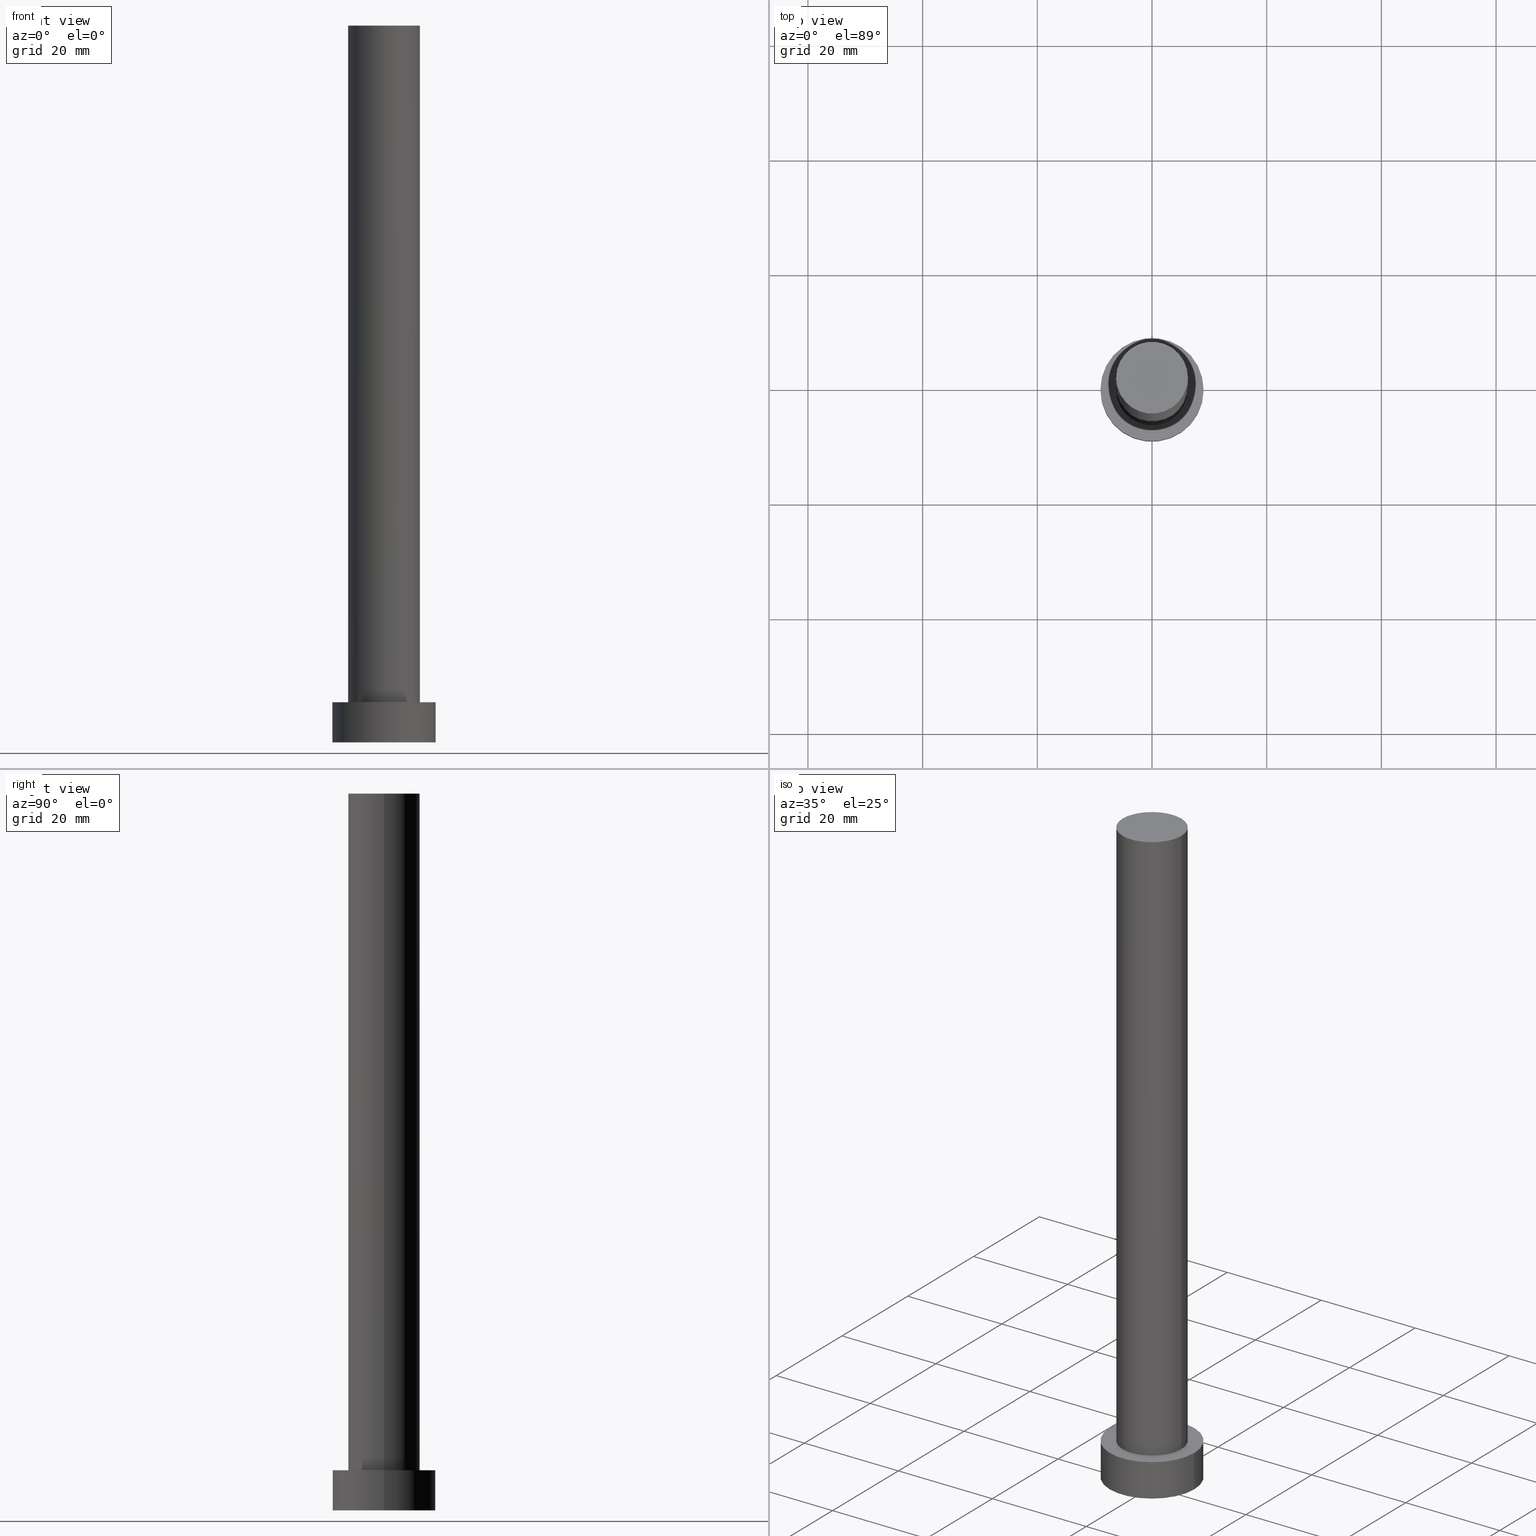
[diagram: canonical four-view strip — front | top / right | iso, engineering-drawing reading convention]
A machine part, canonical four-view strip (front | top / right | iso — engineering-drawing reading convention). The complete STEP part file that produces these views, byte-faithful:
ISO-10303-21;
HEADER;
FILE_DESCRIPTION (( 'STEP AP203' ),
    '1' );
FILE_NAME ('7d40.STEP',
    '2026-02-06T12:36:36',
    ( '' ),
    ( '' ),
    'SwSTEP 2.0',
    'SolidWorks 2019',
    '' );
FILE_SCHEMA (( 'CONFIG_CONTROL_DESIGN' ));
ENDSEC;

DATA;
#1 = CARTESIAN_POINT ( 'NONE',  ( 0.000000000000000000, 0.000000000000000000, 0.000000000000000000 ) ) ;
#2 = ORIENTED_EDGE ( 'NONE', *, *, #75, .F. ) ;
#3 = PRODUCT_DEFINITION_SHAPE ( 'NONE', 'NONE',  #218 ) ;
#4 = DATE_AND_TIME ( #135, #27 ) ;
#5 = FACE_OUTER_BOUND ( 'NONE', #7, .T. ) ;
#6 = PERSON_AND_ORGANIZATION ( #251, #200 ) ;
#7 = EDGE_LOOP ( 'NONE', ( #255, #171, #236, #56 ) ) ;
#8 = PERSON_AND_ORGANIZATION ( #251, #200 ) ;
#9 = CARTESIAN_POINT ( 'NONE',  ( 0.000000000000000000, 0.000000000000000000, 125.0000000000000000 ) ) ;
#10 = APPROVAL_DATE_TIME ( #4, #210 ) ;
#11 = PERSON_AND_ORGANIZATION ( #251, #200 ) ;
#12 = CIRCLE ( 'NONE', #173, 9.000000000000000000 ) ;
#13 = DATE_TIME_ROLE ( 'classification_date' ) ;
#14 = ADVANCED_FACE ( 'NONE', ( #41 ), #20, .T. ) ;
#15 = DIRECTION ( 'NONE',  ( -1.000000000000000000, 0.000000000000000000, 0.000000000000000000 ) ) ;
#16 = CARTESIAN_POINT ( 'NONE',  ( 0.000000000000000000, 0.000000000000000000, 0.000000000000000000 ) ) ;
#17 = CARTESIAN_POINT ( 'NONE',  ( -6.250000000000000000, 0.000000000000000000, 125.0000000000000000 ) ) ;
#18 = UNCERTAINTY_MEASURE_WITH_UNIT (LENGTH_MEASURE( 1.000000000000000082E-05 ), #129, 'distance_accuracy_value', 'NONE');
#19 = APPLICATION_PROTOCOL_DEFINITION ( 'international standard', 'config_control_design', 1994, #238 ) ;
#20 = CYLINDRICAL_SURFACE ( 'NONE', #88, 6.250000000000000000 ) ;
#21 = EDGE_CURVE ( 'NONE', #212, #53, #73, .T. ) ;
#22 = SECURITY_CLASSIFICATION_LEVEL ( 'unclassified' ) ;
#23 = PLANE ( 'NONE',  #104 ) ;
#24 = COORDINATED_UNIVERSAL_TIME_OFFSET ( 1, 0, .AHEAD. ) ;
#25 = CARTESIAN_POINT ( 'NONE',  ( 0.000000000000000000, 0.000000000000000000, 125.0000000000000000 ) ) ;
#26 = EDGE_CURVE ( 'NONE', #91, #145, #249, .T. ) ;
#27 = LOCAL_TIME ( 13, 36, 36.00000000000000000, #193 ) ;
#28 = DIRECTION ( 'NONE',  ( 0.000000000000000000, 0.000000000000000000, 1.000000000000000000 ) ) ;
#29 = CARTESIAN_POINT ( 'NONE',  ( -9.000000000000000000, 0.000000000000000000, 7.000000000000000000 ) ) ;
#30 = ADVANCED_FACE ( 'NONE', ( #5 ), #147, .T. ) ;
#31 = PLANE ( 'NONE',  #137 ) ;
#32 = VERTEX_POINT ( 'NONE', #149 ) ;
#33 = CARTESIAN_POINT ( 'NONE',  ( -6.250000000000000000, 0.000000000000000000, 125.0000000000000000 ) ) ;
#34 =( NAMED_UNIT ( * ) SI_UNIT ( $, .STERADIAN. ) SOLID_ANGLE_UNIT ( ) );
#35 = CC_DESIGN_PERSON_AND_ORGANIZATION_ASSIGNMENT ( #136, #242, ( #253 ) ) ;
#36 = PRODUCT ( '7d40', '7d40', '', ( #97 ) ) ;
#37 = VERTEX_POINT ( 'NONE', #215 ) ;
#38 = CARTESIAN_POINT ( 'NONE',  ( 0.000000000000000000, 0.000000000000000000, 125.0000000000000000 ) ) ;
#39 = AXIS2_PLACEMENT_3D ( 'NONE', #65, #80, #116 ) ;
#40 = PERSON_AND_ORGANIZATION ( #251, #200 ) ;
#41 = FACE_OUTER_BOUND ( 'NONE', #152, .T. ) ;
#42 = CIRCLE ( 'NONE', #172, 6.250000000000000000 ) ;
#43 = COORDINATED_UNIVERSAL_TIME_OFFSET ( 1, 0, .AHEAD. ) ;
#44 = DIRECTION ( 'NONE',  ( -0.000000000000000000, -0.000000000000000000, -1.000000000000000000 ) ) ;
#45 = DATE_AND_TIME ( #155, #153 ) ;
#46 = VECTOR ( 'NONE', #94, 1000.000000000000000 ) ;
#47 = ADVANCED_FACE ( 'NONE', ( #194, #243 ), #239, .T. ) ;
#48 = SECURITY_CLASSIFICATION ( '', '', #22 ) ;
#49 = ADVANCED_FACE ( 'NONE', ( #195 ), #23, .T. ) ;
#50 = DIRECTION ( 'NONE',  ( 0.000000000000000000, 0.000000000000000000, 1.000000000000000000 ) ) ;
#51 = ORIENTED_EDGE ( 'NONE', *, *, #121, .F. ) ;
#52 = CYLINDRICAL_SURFACE ( 'NONE', #207, 6.250000000000000000 ) ;
#53 = VERTEX_POINT ( 'NONE', #17 ) ;
#54 = ADVANCED_FACE ( 'NONE', ( #181 ), #31, .F. ) ;
#55 = DIRECTION ( 'NONE',  ( 1.000000000000000000, 0.000000000000000000, 0.000000000000000000 ) ) ;
#56 = ORIENTED_EDGE ( 'NONE', *, *, #103, .T. ) ;
#57 = DIRECTION ( 'NONE',  ( 1.000000000000000000, 0.000000000000000000, 0.000000000000000000 ) ) ;
#58 = ORIENTED_EDGE ( 'NONE', *, *, #228, .T. ) ;
#59 = ORIENTED_EDGE ( 'NONE', *, *, #95, .F. ) ;
#60 = CC_DESIGN_DATE_AND_TIME_ASSIGNMENT ( #45, #154, ( #218 ) ) ;
#61 = CARTESIAN_POINT ( 'NONE',  ( 0.000000000000000000, 0.000000000000000000, 0.000000000000000000 ) ) ;
#62 = DATE_AND_TIME ( #196, #208 ) ;
#63 = CARTESIAN_POINT ( 'NONE',  ( 0.000000000000000000, 0.000000000000000000, 7.000000000000000000 ) ) ;
#64 = DATE_AND_TIME ( #244, #223 ) ;
#65 = CARTESIAN_POINT ( 'NONE',  ( 0.000000000000000000, 0.000000000000000000, 7.000000000000000000 ) ) ;
#66 = DIRECTION ( 'NONE',  ( 1.000000000000000000, 0.000000000000000000, 0.000000000000000000 ) ) ;
#67 = APPROVAL_STATUS ( 'not_yet_approved' ) ;
#68 = APPROVAL_STATUS ( 'not_yet_approved' ) ;
#69 = CARTESIAN_POINT ( 'NONE',  ( 9.000000000000000000, 1.102182119232617714E-15, 7.000000000000000000 ) ) ;
#70 = CYLINDRICAL_SURFACE ( 'NONE', #214, 9.000000000000000000 ) ;
#71 = DIRECTION ( 'NONE',  ( -0.000000000000000000, -0.000000000000000000, -1.000000000000000000 ) ) ;
#72 = CARTESIAN_POINT ( 'NONE',  ( 0.000000000000000000, 0.000000000000000000, 7.000000000000000000 ) ) ;
#73 = CIRCLE ( 'NONE', #175, 6.250000000000000000 ) ;
#74 = ORIENTED_EDGE ( 'NONE', *, *, #95, .T. ) ;
#75 = EDGE_CURVE ( 'NONE', #212, #37, #205, .T. ) ;
#76 = MANIFOLD_SOLID_BREP ( 'P�idat vysunut�m3', #87 ) ;
#77 = EDGE_LOOP ( 'NONE', ( #58, #170 ) ) ;
#78 = CARTESIAN_POINT ( 'NONE',  ( 9.000000000000000000, 1.102182119232617714E-15, 7.000000000000000000 ) ) ;
#79 = APPROVAL_ROLE ( '' ) ;
#80 = DIRECTION ( 'NONE',  ( -0.000000000000000000, -0.000000000000000000, -1.000000000000000000 ) ) ;
#81 = PERSON_AND_ORGANIZATION_ROLE ( 'classification_officer' ) ;
#82 = ORIENTED_EDGE ( 'NONE', *, *, #123, .F. ) ;
#83 = APPROVAL_ROLE ( '' ) ;
#84 = ORIENTED_EDGE ( 'NONE', *, *, #103, .F. ) ;
#85 = CC_DESIGN_APPROVAL ( #231, ( #253 ) ) ;
#86 = CALENDAR_DATE ( 2026, 6, 2 ) ;
#87 = CLOSED_SHELL ( 'NONE', ( #14, #138, #30, #47, #54, #189, #49 ) ) ;
#88 = AXIS2_PLACEMENT_3D ( 'NONE', #25, #44, #247 ) ;
#89 = CARTESIAN_POINT ( 'NONE',  ( -9.000000000000000000, 0.000000000000000000, 0.000000000000000000 ) ) ;
#90 = LOCAL_TIME ( 13, 36, 36.00000000000000000, #102 ) ;
#91 = VERTEX_POINT ( 'NONE', #69 ) ;
#92 = LINE ( 'NONE', #29, #46 ) ;
#93 = CC_DESIGN_PERSON_AND_ORGANIZATION_ASSIGNMENT ( #100, #130, ( #253 ) ) ;
#94 = DIRECTION ( 'NONE',  ( -0.000000000000000000, -0.000000000000000000, -1.000000000000000000 ) ) ;
#95 = EDGE_CURVE ( 'NONE', #53, #227, #224, .T. ) ;
#96 = CARTESIAN_POINT ( 'NONE',  ( -6.250000000000000000, 0.000000000000000000, 7.000000000000000000 ) ) ;
#97 = MECHANICAL_CONTEXT ( 'NONE', #203, 'mechanical' ) ;
#98 = DIRECTION ( 'NONE',  ( 1.000000000000000000, 0.000000000000000000, 0.000000000000000000 ) ) ;
#99 = EDGE_LOOP ( 'NONE', ( #84, #128 ) ) ;
#100 = PERSON_AND_ORGANIZATION ( #251, #200 ) ;
#101 = CIRCLE ( 'NONE', #134, 9.000000000000000000 ) ;
#102 = COORDINATED_UNIVERSAL_TIME_OFFSET ( 1, 0, .AHEAD. ) ;
#103 = EDGE_CURVE ( 'NONE', #110, #32, #12, .T. ) ;
#104 = AXIS2_PLACEMENT_3D ( 'NONE', #9, #142, #221 ) ;
#105 = CARTESIAN_POINT ( 'NONE',  ( 0.000000000000000000, 0.000000000000000000, 125.0000000000000000 ) ) ;
#106 = DIRECTION ( 'NONE',  ( 0.000000000000000000, 0.000000000000000000, 1.000000000000000000 ) ) ;
#107 = VECTOR ( 'NONE', #225, 1000.000000000000000 ) ;
#108 = ORIENTED_EDGE ( 'NONE', *, *, #121, .T. ) ;
#109 = DIRECTION ( 'NONE',  ( 0.000000000000000000, 0.000000000000000000, 1.000000000000000000 ) ) ;
#110 = VERTEX_POINT ( 'NONE', #89 ) ;
#111 = PERSON_AND_ORGANIZATION ( #251, #200 ) ;
#112 = DESIGN_CONTEXT ( 'detailed design', #238, 'design' ) ;
#113 = ORIENTED_EDGE ( 'NONE', *, *, #168, .T. ) ;
#114 = CARTESIAN_POINT ( 'NONE',  ( 0.000000000000000000, 0.000000000000000000, 7.000000000000000000 ) ) ;
#115 = COORDINATED_UNIVERSAL_TIME_OFFSET ( 1, 0, .AHEAD. ) ;
#116 = DIRECTION ( 'NONE',  ( -1.000000000000000000, 0.000000000000000000, 0.000000000000000000 ) ) ;
#117 = APPROVAL_DATE_TIME ( #62, #231 ) ;
#118 = CC_DESIGN_APPROVAL ( #246, ( #48 ) ) ;
#119 = DATE_AND_TIME ( #86, #90 ) ;
#120 = CARTESIAN_POINT ( 'NONE',  ( 0.000000000000000000, 0.000000000000000000, 7.000000000000000000 ) ) ;
#121 = EDGE_CURVE ( 'NONE', #227, #37, #240, .T. ) ;
#122 = AXIS2_PLACEMENT_3D ( 'NONE', #61, #235, #57 ) ;
#123 = EDGE_CURVE ( 'NONE', #145, #110, #92, .T. ) ;
#124 = CARTESIAN_POINT ( 'NONE',  ( 0.000000000000000000, 0.000000000000000000, 0.000000000000000000 ) ) ;
#125 = ORIENTED_EDGE ( 'NONE', *, *, #21, .F. ) ;
#126 = DIRECTION ( 'NONE',  ( 0.000000000000000000, 0.000000000000000000, 1.000000000000000000 ) ) ;
#127 =( NAMED_UNIT ( * ) PLANE_ANGLE_UNIT ( ) SI_UNIT ( $, .RADIAN. ) );
#128 = ORIENTED_EDGE ( 'NONE', *, *, #157, .F. ) ;
#129 =( LENGTH_UNIT ( ) NAMED_UNIT ( * ) SI_UNIT ( .MILLI., .METRE. ) );
#130 = PERSON_AND_ORGANIZATION_ROLE ( 'creator' ) ;
#131 = DIRECTION ( 'NONE',  ( 0.000000000000000000, 0.000000000000000000, 1.000000000000000000 ) ) ;
#132 = EDGE_LOOP ( 'NONE', ( #206, #197, #182, #82 ) ) ;
#133 = AXIS2_PLACEMENT_3D ( 'NONE', #114, #169, #66 ) ;
#134 = AXIS2_PLACEMENT_3D ( 'NONE', #167, #109, #55 ) ;
#135 = CALENDAR_DATE ( 2026, 6, 2 ) ;
#136 = PERSON_AND_ORGANIZATION ( #251, #200 ) ;
#137 = AXIS2_PLACEMENT_3D ( 'NONE', #16, #126, #158 ) ;
#138 = ADVANCED_FACE ( 'NONE', ( #254 ), #70, .T. ) ;
#139 = PERSON_AND_ORGANIZATION ( #251, #200 ) ;
#140 = CIRCLE ( 'NONE', #222, 9.000000000000000000 ) ;
#141 = EDGE_CURVE ( 'NONE', #53, #212, #252, .T. ) ;
#142 = DIRECTION ( 'NONE',  ( 0.000000000000000000, 0.000000000000000000, 1.000000000000000000 ) ) ;
#143 = DIRECTION ( 'NONE',  ( 1.000000000000000000, 0.000000000000000000, 0.000000000000000000 ) ) ;
#144 = CARTESIAN_POINT ( 'NONE',  ( 0.000000000000000000, 0.000000000000000000, 7.000000000000000000 ) ) ;
#145 = VERTEX_POINT ( 'NONE', #201 ) ;
#146 = DIRECTION ( 'NONE',  ( -0.000000000000000000, -0.000000000000000000, -1.000000000000000000 ) ) ;
#147 = CYLINDRICAL_SURFACE ( 'NONE', #39, 9.000000000000000000 ) ;
#148 = AXIS2_PLACEMENT_3D ( 'NONE', #120, #183, #202 ) ;
#149 = CARTESIAN_POINT ( 'NONE',  ( 9.000000000000000000, 1.102182119232617714E-15, 0.000000000000000000 ) ) ;
#150 = EDGE_LOOP ( 'NONE', ( #51, #162 ) ) ;
#151 = PERSON_AND_ORGANIZATION_ROLE ( 'creator' ) ;
#152 = EDGE_LOOP ( 'NONE', ( #125, #186, #113, #59 ) ) ;
#153 = LOCAL_TIME ( 13, 36, 36.00000000000000000, #43 ) ;
#154 = DATE_TIME_ROLE ( 'creation_date' ) ;
#155 = CALENDAR_DATE ( 2026, 6, 2 ) ;
#156 = PRODUCT_RELATED_PRODUCT_CATEGORY ( 'detail', '', ( #36 ) ) ;
#157 = EDGE_CURVE ( 'NONE', #32, #110, #140, .T. ) ;
#158 = DIRECTION ( 'NONE',  ( 1.000000000000000000, 0.000000000000000000, -0.000000000000000000 ) ) ;
#159 = CC_DESIGN_SECURITY_CLASSIFICATION ( #48, ( #253 ) ) ;
#160 = CC_DESIGN_PERSON_AND_ORGANIZATION_ASSIGNMENT ( #6, #81, ( #48 ) ) ;
#161 = CARTESIAN_POINT ( 'NONE',  ( 6.250000000000000000, 7.654042494670957606E-16, 125.0000000000000000 ) ) ;
#162 = ORIENTED_EDGE ( 'NONE', *, *, #168, .F. ) ;
#163 = CARTESIAN_POINT ( 'NONE',  ( 0.000000000000000000, 0.000000000000000000, 125.0000000000000000 ) ) ;
#164 = AXIS2_PLACEMENT_3D ( 'NONE', #63, #131, #213 ) ;
#165 = DIRECTION ( 'NONE',  ( 1.000000000000000000, 0.000000000000000000, 0.000000000000000000 ) ) ;
#166 = CC_DESIGN_DATE_AND_TIME_ASSIGNMENT ( #64, #13, ( #48 ) ) ;
#167 = CARTESIAN_POINT ( 'NONE',  ( 0.000000000000000000, 0.000000000000000000, 7.000000000000000000 ) ) ;
#168 = EDGE_CURVE ( 'NONE', #37, #227, #42, .T. ) ;
#169 = DIRECTION ( 'NONE',  ( 0.000000000000000000, 0.000000000000000000, 1.000000000000000000 ) ) ;
#170 = ORIENTED_EDGE ( 'NONE', *, *, #26, .T. ) ;
#171 = ORIENTED_EDGE ( 'NONE', *, *, #228, .F. ) ;
#172 = AXIS2_PLACEMENT_3D ( 'NONE', #144, #50, #204 ) ;
#173 = AXIS2_PLACEMENT_3D ( 'NONE', #124, #106, #143 ) ;
#174 = VECTOR ( 'NONE', #185, 1000.000000000000000 ) ;
#175 = AXIS2_PLACEMENT_3D ( 'NONE', #38, #245, #98 ) ;
#176 = DIRECTION ( 'NONE',  ( 0.000000000000000000, 0.000000000000000000, 1.000000000000000000 ) ) ;
#177 = ADVANCED_BREP_SHAPE_REPRESENTATION ( '7d40', ( #76, #122 ), #179 ) ;
#178 = DIRECTION ( 'NONE',  ( -0.000000000000000000, -0.000000000000000000, -1.000000000000000000 ) ) ;
#179 =( GEOMETRIC_REPRESENTATION_CONTEXT ( 3 ) GLOBAL_UNCERTAINTY_ASSIGNED_CONTEXT ( ( #18 ) ) GLOBAL_UNIT_ASSIGNED_CONTEXT ( ( #129, #127, #34 ) ) REPRESENTATION_CONTEXT ( 'NONE', 'WORKASPACE' ) );
#180 = ORIENTED_EDGE ( 'NONE', *, *, #21, .T. ) ;
#181 = FACE_OUTER_BOUND ( 'NONE', #99, .T. ) ;
#182 = ORIENTED_EDGE ( 'NONE', *, *, #157, .T. ) ;
#183 = DIRECTION ( 'NONE',  ( 0.000000000000000000, 0.000000000000000000, 1.000000000000000000 ) ) ;
#184 = EDGE_LOOP ( 'NONE', ( #211, #180 ) ) ;
#185 = DIRECTION ( 'NONE',  ( -0.000000000000000000, -0.000000000000000000, -1.000000000000000000 ) ) ;
#186 = ORIENTED_EDGE ( 'NONE', *, *, #75, .T. ) ;
#187 = APPROVAL_PERSON_ORGANIZATION ( #40, #231, #79 ) ;
#188 = PERSON_AND_ORGANIZATION_ROLE ( 'design_owner' ) ;
#189 = ADVANCED_FACE ( 'NONE', ( #230 ), #52, .T. ) ;
#190 = APPLICATION_PROTOCOL_DEFINITION ( 'international standard', 'config_control_design', 1994, #203 ) ;
#191 = ORIENTED_EDGE ( 'NONE', *, *, #141, .F. ) ;
#192 = LINE ( 'NONE', #78, #174 ) ;
#193 = COORDINATED_UNIVERSAL_TIME_OFFSET ( 1, 0, .AHEAD. ) ;
#194 = FACE_BOUND ( 'NONE', #150, .T. ) ;
#195 = FACE_OUTER_BOUND ( 'NONE', #184, .T. ) ;
#196 = CALENDAR_DATE ( 2026, 6, 2 ) ;
#197 = ORIENTED_EDGE ( 'NONE', *, *, #217, .T. ) ;
#198 = CC_DESIGN_APPROVAL ( #210, ( #218 ) ) ;
#199 = APPROVAL_ROLE ( '' ) ;
#200 = ORGANIZATION ( 'NEUR�EN�', 'NEUR�EN�', '' ) ;
#201 = CARTESIAN_POINT ( 'NONE',  ( -9.000000000000000000, 0.000000000000000000, 7.000000000000000000 ) ) ;
#202 = DIRECTION ( 'NONE',  ( 1.000000000000000000, 0.000000000000000000, 0.000000000000000000 ) ) ;
#203 = APPLICATION_CONTEXT ( 'configuration controlled 3d designs of mechanical parts and assemblies' ) ;
#204 = DIRECTION ( 'NONE',  ( 1.000000000000000000, 0.000000000000000000, 0.000000000000000000 ) ) ;
#205 = LINE ( 'NONE', #161, #107 ) ;
#206 = ORIENTED_EDGE ( 'NONE', *, *, #26, .F. ) ;
#207 = AXIS2_PLACEMENT_3D ( 'NONE', #105, #146, #237 ) ;
#208 = LOCAL_TIME ( 13, 36, 36.00000000000000000, #24 ) ;
#209 = CC_DESIGN_PERSON_AND_ORGANIZATION_ASSIGNMENT ( #111, #188, ( #36 ) ) ;
#210 = APPROVAL ( #216, 'NEUR�EN�' ) ;
#211 = ORIENTED_EDGE ( 'NONE', *, *, #141, .T. ) ;
#212 = VERTEX_POINT ( 'NONE', #233 ) ;
#213 = DIRECTION ( 'NONE',  ( 1.000000000000000000, 0.000000000000000000, -0.000000000000000000 ) ) ;
#214 = AXIS2_PLACEMENT_3D ( 'NONE', #72, #178, #15 ) ;
#215 = CARTESIAN_POINT ( 'NONE',  ( 6.250000000000000000, 7.654042494670957606E-16, 7.000000000000000000 ) ) ;
#216 = APPROVAL_STATUS ( 'not_yet_approved' ) ;
#217 = EDGE_CURVE ( 'NONE', #91, #32, #192, .T. ) ;
#218 = PRODUCT_DEFINITION ( 'NEZN�M�', '', #253, #112 ) ;
#219 = APPROVAL_DATE_TIME ( #119, #246 ) ;
#220 = SHAPE_DEFINITION_REPRESENTATION ( #3, #177 ) ;
#221 = DIRECTION ( 'NONE',  ( 1.000000000000000000, 0.000000000000000000, -0.000000000000000000 ) ) ;
#222 = AXIS2_PLACEMENT_3D ( 'NONE', #1, #28, #226 ) ;
#223 = LOCAL_TIME ( 13, 36, 36.00000000000000000, #115 ) ;
#224 = LINE ( 'NONE', #33, #229 ) ;
#225 = DIRECTION ( 'NONE',  ( -0.000000000000000000, -0.000000000000000000, -1.000000000000000000 ) ) ;
#226 = DIRECTION ( 'NONE',  ( 1.000000000000000000, 0.000000000000000000, 0.000000000000000000 ) ) ;
#227 = VERTEX_POINT ( 'NONE', #96 ) ;
#228 = EDGE_CURVE ( 'NONE', #145, #91, #101, .T. ) ;
#229 = VECTOR ( 'NONE', #71, 1000.000000000000000 ) ;
#230 = FACE_OUTER_BOUND ( 'NONE', #234, .T. ) ;
#231 = APPROVAL ( #67, 'NEUR�EN�' ) ;
#232 = AXIS2_PLACEMENT_3D ( 'NONE', #163, #176, #165 ) ;
#233 = CARTESIAN_POINT ( 'NONE',  ( 6.250000000000000000, 7.654042494670957606E-16, 125.0000000000000000 ) ) ;
#234 = EDGE_LOOP ( 'NONE', ( #2, #191, #74, #108 ) ) ;
#235 = DIRECTION ( 'NONE',  ( 0.000000000000000000, 0.000000000000000000, 1.000000000000000000 ) ) ;
#236 = ORIENTED_EDGE ( 'NONE', *, *, #123, .T. ) ;
#237 = DIRECTION ( 'NONE',  ( -1.000000000000000000, 0.000000000000000000, 0.000000000000000000 ) ) ;
#238 = APPLICATION_CONTEXT ( 'configuration controlled 3d designs of mechanical parts and assemblies' ) ;
#239 = PLANE ( 'NONE',  #164 ) ;
#240 = CIRCLE ( 'NONE', #148, 6.250000000000000000 ) ;
#241 = APPROVAL_PERSON_ORGANIZATION ( #139, #246, #199 ) ;
#242 = PERSON_AND_ORGANIZATION_ROLE ( 'design_supplier' ) ;
#243 = FACE_OUTER_BOUND ( 'NONE', #77, .T. ) ;
#244 = CALENDAR_DATE ( 2026, 6, 2 ) ;
#245 = DIRECTION ( 'NONE',  ( 0.000000000000000000, 0.000000000000000000, 1.000000000000000000 ) ) ;
#246 = APPROVAL ( #68, 'NEUR�EN�' ) ;
#247 = DIRECTION ( 'NONE',  ( -1.000000000000000000, 0.000000000000000000, 0.000000000000000000 ) ) ;
#248 = APPROVAL_PERSON_ORGANIZATION ( #8, #210, #83 ) ;
#249 = CIRCLE ( 'NONE', #133, 9.000000000000000000 ) ;
#250 = CC_DESIGN_PERSON_AND_ORGANIZATION_ASSIGNMENT ( #11, #151, ( #218 ) ) ;
#251 = PERSON ( 'NEUR�EN�', 'NEUR�EN�', 'NEUR�EN�', ('NEUR�EN�'), ('NEUR�EN�'), ('NEUR�EN�') ) ;
#252 = CIRCLE ( 'NONE', #232, 6.250000000000000000 ) ;
#253 = PRODUCT_DEFINITION_FORMATION_WITH_SPECIFIED_SOURCE ( 'LIBOVOLN�', '', #36, .NOT_KNOWN. ) ;
#254 = FACE_OUTER_BOUND ( 'NONE', #132, .T. ) ;
#255 = ORIENTED_EDGE ( 'NONE', *, *, #217, .F. ) ;
ENDSEC;
END-ISO-10303-21;
